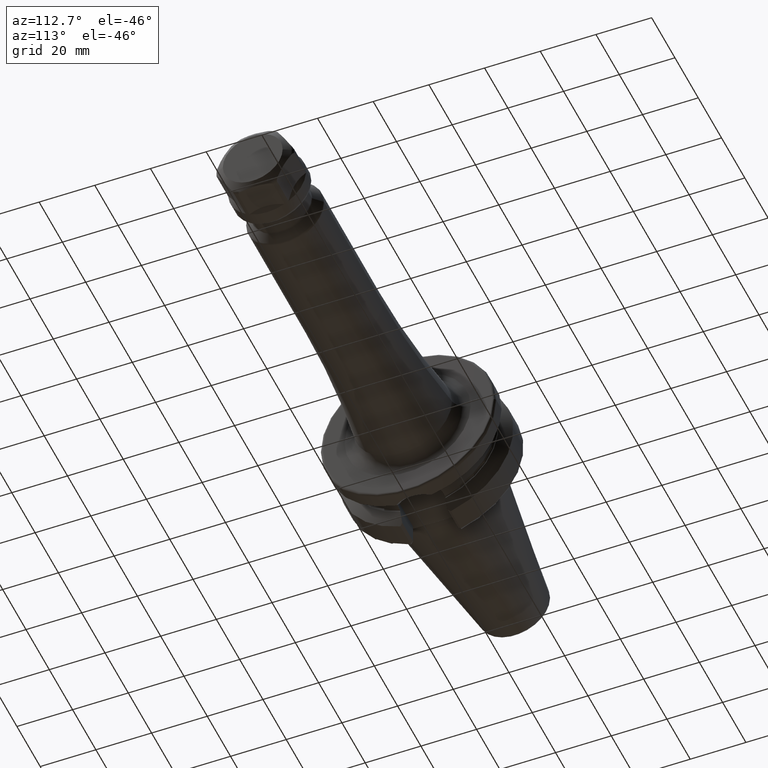
[diagram: clean part render]
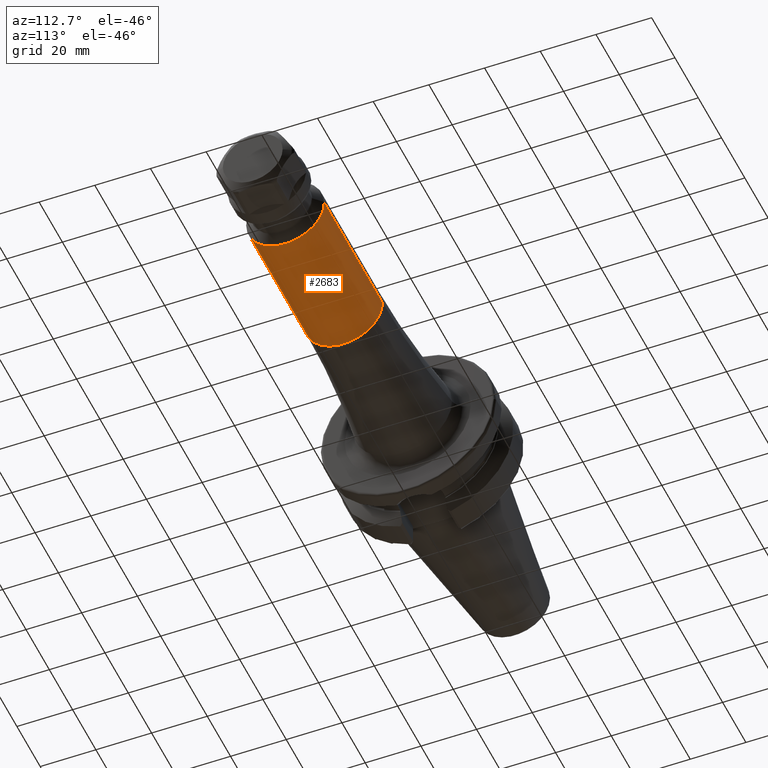
[diagram: same view with one face highlighted and labeled with its STEP entity id]
A machine part, auxiliary view. The second image highlights one B-rep face of the part: STEP entity #2683.
In plain terms, the highlighted cylindrical surface (partial cylindrical patch) has radius 14 mm, axis along (1, 0, 0).
Its self-contained STEP definition (entity closure, byte-faithful):
#876=CARTESIAN_POINT('',(8.2E1,0.E0,0.E0));
#877=DIRECTION('',(1.E0,0.E0,0.E0));
#878=DIRECTION('',(0.E0,-1.E0,0.E0));
#879=AXIS2_PLACEMENT_3D('',#876,#877,#878);
#881=DIRECTION('',(-1.E0,0.E0,-4.514225001373E-14));
#882=VECTOR('',#881,4.998578643763E1);
#883=CARTESIAN_POINT('',(1.319857864376E2,-1.4E1,2.254215462114E-12));
#884=LINE('',#883,#882);
#885=CARTESIAN_POINT('',(1.319857864376E2,0.E0,0.E0));
#886=DIRECTION('',(-1.E0,0.E0,0.E0));
#887=DIRECTION('',(0.E0,1.E0,0.E0));
#888=AXIS2_PLACEMENT_3D('',#885,#886,#887);
#890=DIRECTION('',(-1.E0,0.E0,4.514000388546E-14));
#891=VECTOR('',#890,4.998578643763E1);
#892=CARTESIAN_POINT('',(1.319857864376E2,1.4E1,-2.254644088493E-12));
#893=LINE('',#892,#891);
#1493=CARTESIAN_POINT('',(1.319857864376E2,1.4E1,0.E0));
#1494=CARTESIAN_POINT('',(1.319857864376E2,-1.4E1,0.E0));
#1495=VERTEX_POINT('',#1493);
#1496=VERTEX_POINT('',#1494);
#1501=CARTESIAN_POINT('',(8.2E1,1.4E1,0.E0));
#1502=CARTESIAN_POINT('',(8.2E1,-1.4E1,0.E0));
#1503=VERTEX_POINT('',#1501);
#1504=VERTEX_POINT('',#1502);
#2669=CARTESIAN_POINT('',(2.088E1,0.E0,0.E0));
#2670=DIRECTION('',(1.E0,0.E0,0.E0));
#2671=DIRECTION('',(0.E0,-1.E0,0.E0));
#2672=AXIS2_PLACEMENT_3D('',#2669,#2670,#2671);
#2673=CYLINDRICAL_SURFACE('',#2672,1.4E1);
#2674=ORIENTED_EDGE('',*,*,#2663,.F.);
#2676=ORIENTED_EDGE('',*,*,#2675,.F.);
#2678=ORIENTED_EDGE('',*,*,#2677,.F.);
#2680=ORIENTED_EDGE('',*,*,#2679,.T.);
#2681=EDGE_LOOP('',(#2674,#2676,#2678,#2680));
#2682=FACE_OUTER_BOUND('',#2681,.F.);
#2683=ADVANCED_FACE('',(#2682),#2673,.T.);
#880=CIRCLE('',#879,1.4E1);
#889=CIRCLE('',#888,1.4E1);
#2663=EDGE_CURVE('',#1504,#1503,#880,.T.);
#2675=EDGE_CURVE('',#1496,#1504,#884,.T.);
#2677=EDGE_CURVE('',#1495,#1496,#889,.T.);
#2679=EDGE_CURVE('',#1495,#1503,#893,.T.);